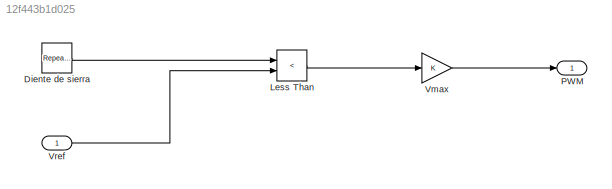
MODEL slx_12f443b1d025
KIND model
CONFIG AbsTol = auto
CONFIG EnableMultiTasking = off
CONFIG FixedStep = auto
CONFIG MaxStep = auto
CONFIG MinStep = auto
CONFIG RelTol = 1e-3
CONFIG SampleTimeConstraint = Unconstrained
CONFIG SolverName = VariableStepAuto
CONFIG StartTime = 0.0
CONFIG StopTime = 10.0
BLOCK [Reference] Diente de sierra  REF=simulink/Sources/Repeating
Sequence
  SourceBlock = simulink/Sources/Repeating\nSequence
  SourceType = Repeating table
BLOCK [RelationalOperator] Less Than
  InputSameDT = off
  Operator = <
  OutDataTypeStr = boolean
  RndMeth = Simplest
BLOCK [Outport] PWM
BLOCK [Gain] Vmax
  Gain = K
BLOCK [Inport] Vref
LINE Diente de sierra:1 -> Less Than:1
LINE Less Than:1 -> Vmax:1
LINE Vmax:1 -> PWM:1
LINE Vref:1 -> Less Than:2
